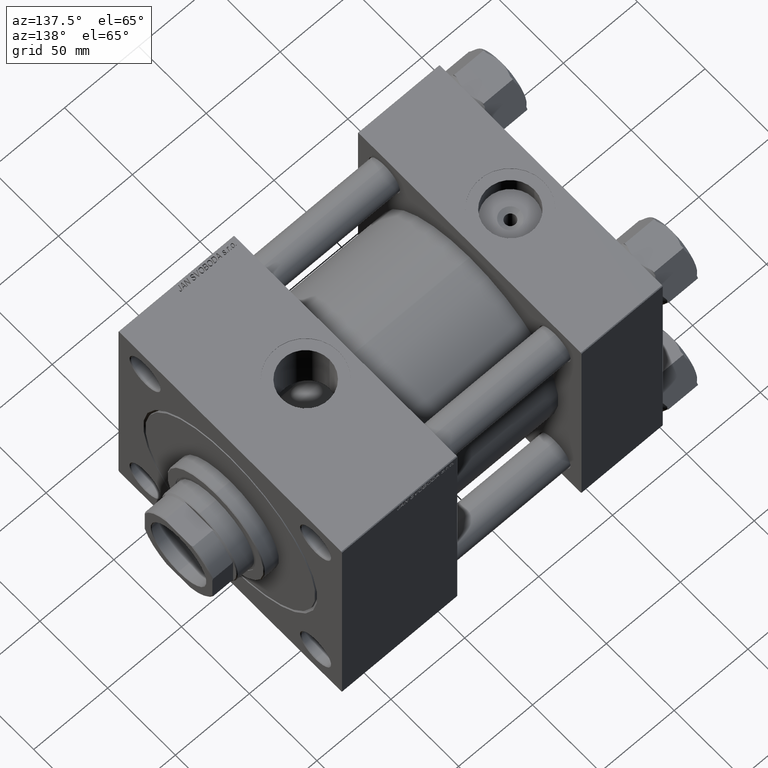
[diagram: clean part render]
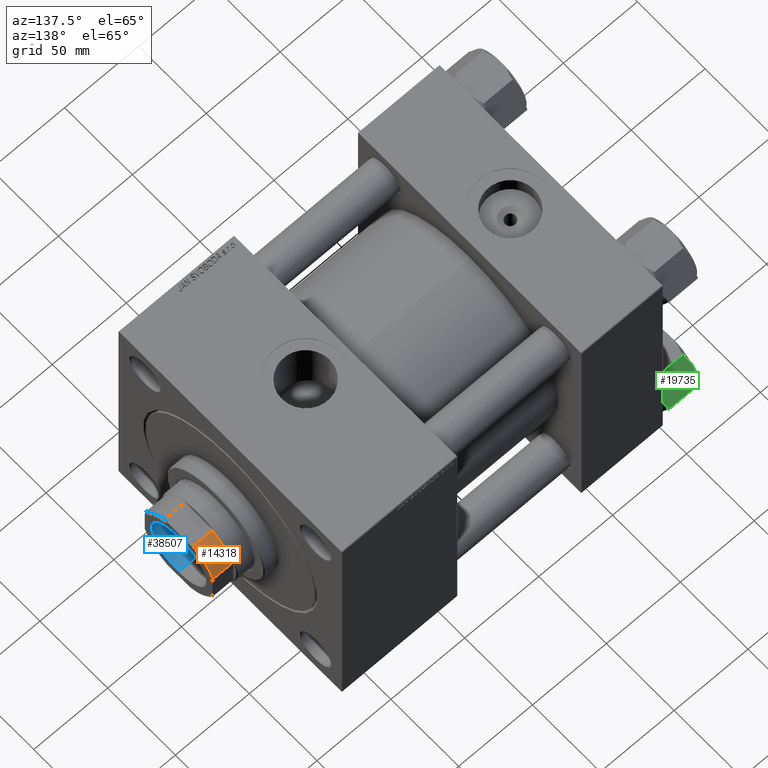
[diagram: same view with three faces highlighted in distinct colors, each labeled with its STEP entity id]
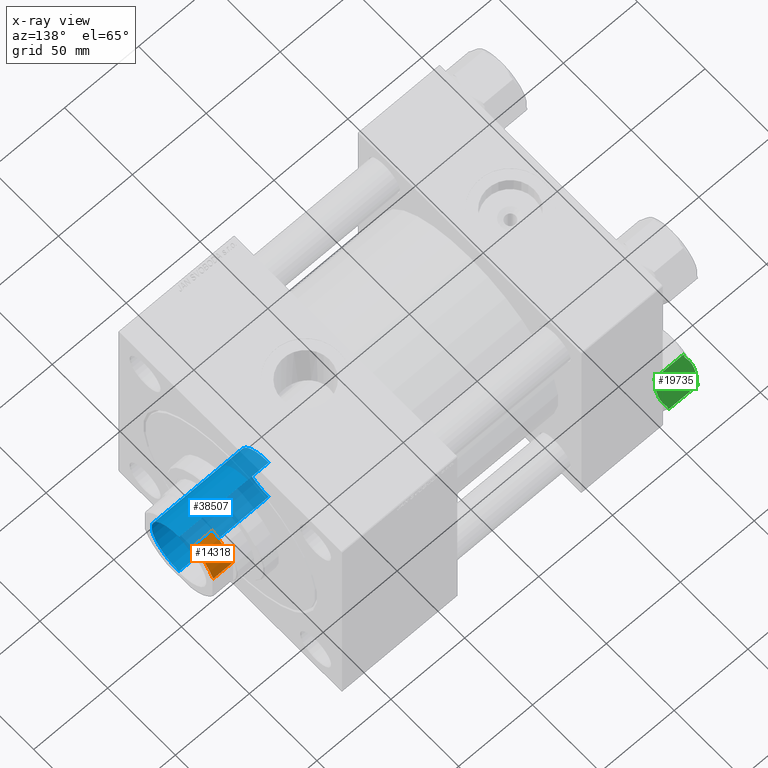
[diagram: x-ray of the same camera — body ghosted, the three highlighted faces saturated]
A machine part, auxiliary view with three faces highlighted in distinct colors.
The next image is the same camera in x-ray (body ghosted, the three faces saturated) — at least one of them is partly hidden behind the body in this view.
Their STEP definitions:

[orange] entity #14318 — the highlighted cylindrical surface (partial cylindrical patch) has radius 27 mm, axis along (1, 0, -0).
#904 = EDGE_LOOP ( 'NONE', ( #7978, #37603, #30715, #19022 ) ) ;
#2422 = VECTOR ( 'NONE', #36623, 1000.000000000000000 ) ;
#4158 = CARTESIAN_POINT ( 'NONE',  ( 24.99999999999999645, -10.19803902718558675, 183.4999999999999432 ) ) ;
#5453 = VERTEX_POINT ( 'NONE', #37686 ) ;
#7463 = EDGE_CURVE ( 'NONE', #16894, #12672, #12771, .T. ) ;
#7978 = ORIENTED_EDGE ( 'NONE', *, *, #20762, .T. ) ;
#10698 = DIRECTION ( 'NONE',  ( 1.000000000000000000, 0.000000000000000000, 0.000000000000000000 ) ) ;
#12672 = VERTEX_POINT ( 'NONE', #18009 ) ;
#12771 = CIRCLE ( 'NONE', #41458, 27.00000000000000355 ) ;
#13146 = CIRCLE ( 'NONE', #23853, 27.00000000000000355 ) ;
#14318 = ADVANCED_FACE ( 'NONE', ( #41746 ), #45864, .T. ) ;
#14682 = DIRECTION ( 'NONE',  ( -0.000000000000000000, -0.000000000000000000, 1.000000000000000000 ) ) ;
#16894 = VERTEX_POINT ( 'NONE', #30348 ) ;
#18009 = CARTESIAN_POINT ( 'NONE',  ( 10.19803902718556188, -25.00000000000000355, 196.5000000000000568 ) ) ;
#19022 = ORIENTED_EDGE ( 'NONE', *, *, #41978, .T. ) ;
#19491 = CARTESIAN_POINT ( 'NONE',  ( 24.99999999999999645, -10.19803902718558675, -0.001000000000001000089 ) ) ;
#20762 = EDGE_CURVE ( 'NONE', #49645, #16894, #47202, .T. ) ;
#21792 = CARTESIAN_POINT ( 'NONE',  ( 0.000000000000000000, 0.000000000000000000, 196.5000000000000568 ) ) ;
#22134 = CARTESIAN_POINT ( 'NONE',  ( 0.000000000000000000, 0.000000000000000000, 183.4999999999999432 ) ) ;
#23853 = AXIS2_PLACEMENT_3D ( 'NONE', #22134, #14682, #37813 ) ;
#27549 = CARTESIAN_POINT ( 'NONE',  ( 0.000000000000000000, 0.000000000000000000, -0.001000000000001000089 ) ) ;
#30348 = CARTESIAN_POINT ( 'NONE',  ( 24.99999999999999645, -10.19803902718558675, 196.5000000000000568 ) ) ;
#30715 = ORIENTED_EDGE ( 'NONE', *, *, #35496, .F. ) ;
#31144 = DIRECTION ( 'NONE',  ( -0.000000000000000000, -0.000000000000000000, 1.000000000000000000 ) ) ;
#31438 = CARTESIAN_POINT ( 'NONE',  ( 10.19803902718556188, -25.00000000000000355, -0.001000000000001000089 ) ) ;
#31945 = DIRECTION ( 'NONE',  ( -0.000000000000000000, -0.000000000000000000, 1.000000000000000000 ) ) ;
#35496 = EDGE_CURVE ( 'NONE', #5453, #12672, #39651, .T. ) ;
#36623 = DIRECTION ( 'NONE',  ( -0.000000000000000000, -0.000000000000000000, 1.000000000000000000 ) ) ;
#37603 = ORIENTED_EDGE ( 'NONE', *, *, #7463, .T. ) ;
#37686 = CARTESIAN_POINT ( 'NONE',  ( 10.19803902718556188, -25.00000000000000355, 183.4999999999999432 ) ) ;
#37813 = DIRECTION ( 'NONE',  ( -1.000000000000000000, 0.000000000000000000, 0.000000000000000000 ) ) ;
#39113 = AXIS2_PLACEMENT_3D ( 'NONE', #27549, #31144, #10698 ) ;
#39651 = LINE ( 'NONE', #31438, #45875 ) ;
#41458 = AXIS2_PLACEMENT_3D ( 'NONE', #21792, #49486, #45407 ) ;
#41746 = FACE_OUTER_BOUND ( 'NONE', #904, .T. ) ;
#41978 = EDGE_CURVE ( 'NONE', #5453, #49645, #13146, .T. ) ;
#45407 = DIRECTION ( 'NONE',  ( 1.000000000000000000, 0.000000000000000000, 0.000000000000000000 ) ) ;
#45864 = CYLINDRICAL_SURFACE ( 'NONE', #39113, 27.00000000000000355 ) ;
#45875 = VECTOR ( 'NONE', #31945, 1000.000000000000000 ) ;
#47202 = LINE ( 'NONE', #19491, #2422 ) ;
#49486 = DIRECTION ( 'NONE',  ( -0.000000000000000000, -0.000000000000000000, -1.000000000000000000 ) ) ;
#49645 = VERTEX_POINT ( 'NONE', #4158 ) ;

[blue] entity #38507 — the highlighted cylindrical surface (partial cylindrical patch) has radius 20.25 mm, axis along (1, 0, -0).
#1 = ORIENTED_EDGE ( 'NONE', *, *, #14496, .T. ) ;
#113 = EDGE_CURVE ( 'NONE', #23520, #20941, #537, .T. ) ;
#232 = EDGE_LOOP ( 'NONE', ( #43919, #3446, #1, #11897 ) ) ;
#537 = CIRCLE ( 'NONE', #5456, 20.24999999999999289 ) ;
#1915 = CARTESIAN_POINT ( 'NONE',  ( -20.24999999999998934, 2.479909768273389117E-15, 136.0000000000000000 ) ) ;
#3446 = ORIENTED_EDGE ( 'NONE', *, *, #40071, .F. ) ;
#4065 = DIRECTION ( 'NONE',  ( 1.000000000000000000, 0.000000000000000000, 0.000000000000000000 ) ) ;
#5456 = AXIS2_PLACEMENT_3D ( 'NONE', #40649, #40396, #20890 ) ;
#5888 = CARTESIAN_POINT ( 'NONE',  ( 0.000000000000000000, 0.000000000000000000, 136.0000000000000000 ) ) ;
#6139 = DIRECTION ( 'NONE',  ( 1.000000000000000000, 0.000000000000000000, 0.000000000000000000 ) ) ;
#6864 = CARTESIAN_POINT ( 'NONE',  ( 20.24999999999999289, 0.000000000000000000, 196.7000000000001023 ) ) ;
#7664 = CARTESIAN_POINT ( 'NONE',  ( 0.000000000000000000, 0.000000000000000000, 197.0000000000000000 ) ) ;
#11897 = ORIENTED_EDGE ( 'NONE', *, *, #113, .T. ) ;
#12482 = VECTOR ( 'NONE', #28641, 1000.000000000000000 ) ;
#14496 = EDGE_CURVE ( 'NONE', #41160, #23520, #18125, .T. ) ;
#16333 = CARTESIAN_POINT ( 'NONE',  ( -20.24999999999999289, 2.479909768273389511E-15, 197.0000000000000000 ) ) ;
#16450 = VERTEX_POINT ( 'NONE', #1915 ) ;
#18125 = LINE ( 'NONE', #42481, #19419 ) ;
#19419 = VECTOR ( 'NONE', #22984, 1000.000000000000000 ) ;
#19671 = AXIS2_PLACEMENT_3D ( 'NONE', #5888, #48754, #6139 ) ;
#19707 = AXIS2_PLACEMENT_3D ( 'NONE', #7664, #26915, #4065 ) ;
#20890 = DIRECTION ( 'NONE',  ( 1.000000000000000000, 0.000000000000000000, 0.000000000000000000 ) ) ;
#20941 = VERTEX_POINT ( 'NONE', #41713 ) ;
#22984 = DIRECTION ( 'NONE',  ( -0.000000000000000000, -0.000000000000000000, 1.000000000000000000 ) ) ;
#23520 = VERTEX_POINT ( 'NONE', #6864 ) ;
#26649 = EDGE_CURVE ( 'NONE', #16450, #20941, #33006, .T. ) ;
#26915 = DIRECTION ( 'NONE',  ( -0.000000000000000000, -0.000000000000000000, 1.000000000000000000 ) ) ;
#27954 = FACE_OUTER_BOUND ( 'NONE', #232, .T. ) ;
#28641 = DIRECTION ( 'NONE',  ( -0.000000000000000000, -0.000000000000000000, 1.000000000000000000 ) ) ;
#33006 = LINE ( 'NONE', #16333, #12482 ) ;
#38507 = ADVANCED_FACE ( 'NONE', ( #27954 ), #43353, .F. ) ;
#40071 = EDGE_CURVE ( 'NONE', #41160, #16450, #47509, .T. ) ;
#40396 = DIRECTION ( 'NONE',  ( 0.000000000000000000, 0.000000000000000000, 1.000000000000000000 ) ) ;
#40649 = CARTESIAN_POINT ( 'NONE',  ( 0.000000000000000000, 0.000000000000000000, 196.7000000000001023 ) ) ;
#41160 = VERTEX_POINT ( 'NONE', #47428 ) ;
#41713 = CARTESIAN_POINT ( 'NONE',  ( -20.24999999999999289, 2.479909768273389511E-15, 196.7000000000001023 ) ) ;
#42481 = CARTESIAN_POINT ( 'NONE',  ( 20.24999999999999289, 0.000000000000000000, 197.0000000000000000 ) ) ;
#43353 = CYLINDRICAL_SURFACE ( 'NONE', #19707, 20.24999999999999289 ) ;
#43919 = ORIENTED_EDGE ( 'NONE', *, *, #26649, .F. ) ;
#47428 = CARTESIAN_POINT ( 'NONE',  ( 20.24999999999998934, 0.000000000000000000, 136.0000000000000000 ) ) ;
#47509 = CIRCLE ( 'NONE', #19671, 20.24999999999998934 ) ;
#48754 = DIRECTION ( 'NONE',  ( -0.000000000000000000, -0.000000000000000000, 1.000000000000000000 ) ) ;

[green] entity #19735 — the highlighted planar face has unit normal (-0, -0.866, -0.5).
#2327 = CARTESIAN_POINT ( 'NONE',  ( 10.81000000000000405, 18.72346922981957107, -2.000000000000001776 ) ) ;
#2765 = CARTESIAN_POINT ( 'NONE',  ( 20.65611126068911574, 1.669504269329972868, -22.00000000000000000 ) ) ;
#3026 = CARTESIAN_POINT ( 'NONE',  ( 10.81000000000000405, 18.72346922981957107, -24.00000000000000000 ) ) ;
#3065 = EDGE_CURVE ( 'NONE', #20013, #50739, #13967, .T. ) ;
#3385 = LINE ( 'NONE', #14946, #18806 ) ;
#6328 = EDGE_CURVE ( 'NONE', #38561, #32555, #42109, .T. ) ;
#6504 = AXIS2_PLACEMENT_3D ( 'NONE', #32491, #29398, #25288 ) ;
#6721 = CARTESIAN_POINT ( 'NONE',  ( 16.98598932500589243, 8.026341931906362248, -0.05945867712355891455 ) ) ;
#6973 = VERTEX_POINT ( 'NONE', #18375 ) ;
#9144 = B_SPLINE_CURVE_WITH_KNOTS ( 'NONE', 3,
 ( #21078, #36746, #25432, #29293, #36500, #16985, #21335, #49028 ),
 .UNSPECIFIED., .F., .F.,
 ( 4, 2, 2, 4 ),
 ( 0.009109849294687017568, 0.01366157320126708957, 0.01593743515455712384, 0.01821329710784716158 ),
 .UNSPECIFIED. ) ;
#9383 = PLANE ( 'NONE',  #6504 ) ;
#9888 = B_SPLINE_CURVE_WITH_KNOTS ( 'NONE', 3,
 ( #34741, #27272, #15993, #27530, #27794, #38590, #19313, #31390 ),
 .UNSPECIFIED., .F., .F.,
 ( 4, 2, 2, 4 ),
 ( 0.009109849294687050528, 0.01366157320126712774, 0.01593743515455716547, 0.01821329710784720668 ),
 .UNSPECIFIED. ) ;
#10001 = CARTESIAN_POINT ( 'NONE',  ( 15.25296234352182800, 11.02803271472448365, -23.90516550165010656 ) ) ;
#10250 = CARTESIAN_POINT ( 'NONE',  ( 11.77388873931089641, 17.05396496048959065, -22.00000000000000000 ) ) ;
#10603 = CARTESIAN_POINT ( 'NONE',  ( 21.62000000000000810, -3.103245954629008997E-15, -24.00000000000000000 ) ) ;
#10779 = EDGE_CURVE ( 'NONE', #21820, #14639, #14023, .T. ) ;
#10824 = CARTESIAN_POINT ( 'NONE',  ( 16.60104632518792656, 8.693082765609046803, -0.01197337667081646920 ) ) ;
#11597 = EDGE_CURVE ( 'NONE', #23070, #32555, #22555, .T. ) ;
#13031 = ORIENTED_EDGE ( 'NONE', *, *, #20409, .F. ) ;
#13454 = CARTESIAN_POINT ( 'NONE',  ( 16.21500000000001052, 9.361734614909783758, 0.000000000000000000 ) ) ;
#13475 = ORIENTED_EDGE ( 'NONE', *, *, #48458, .F. ) ;
#13967 = B_SPLINE_CURVE_WITH_KNOTS ( 'NONE', 3,
 ( #18276, #45988, #38788, #33947, #45735, #46236, #6721, #10824, #26473, #14922 ),
 .UNSPECIFIED., .F., .F.,
 ( 4, 2, 2, 2, 4 ),
 ( 5.007809737542536672E-07, 0.004555175037830400987, 0.006832512166258725324, 0.007971180730472888359, 0.009109849294687050528 ),
 .UNSPECIFIED. ) ;
#14023 = LINE ( 'NONE', #29186, #33383 ) ;
#14372 = ORIENTED_EDGE ( 'NONE', *, *, #39543, .F. ) ;
#14520 = CARTESIAN_POINT ( 'NONE',  ( 11.77388873931089641, 17.05396496048959065, -22.00000000000000000 ) ) ;
#14552 = VERTEX_POINT ( 'NONE', #14520 ) ;
#14639 = VERTEX_POINT ( 'NONE', #19373 ) ;
#14922 = CARTESIAN_POINT ( 'NONE',  ( 16.21500000000001052, 9.361734614909783758, 0.000000000000000000 ) ) ;
#14946 = CARTESIAN_POINT ( 'NONE',  ( 10.81000000000000405, 18.72346922981957107, -2.000000000000001776 ) ) ;
#15147 = CARTESIAN_POINT ( 'NONE',  ( 20.65611126068912640, 1.669504269329956436, -2.000000000000000000 ) ) ;
#15199 = LINE ( 'NONE', #10603, #33058 ) ;
#15993 = CARTESIAN_POINT ( 'NONE',  ( 14.69400019531146562, 11.99618355493267785, -0.1908188403547866896 ) ) ;
#16985 = CARTESIAN_POINT ( 'NONE',  ( 19.94246781890515408, 2.905570968988123948, -22.58212083167677520 ) ) ;
#17467 = CARTESIAN_POINT ( 'NONE',  ( 16.21500000000000341, 9.361734614909781982, -24.00000000000000000 ) ) ;
#18212 = CARTESIAN_POINT ( 'NONE',  ( 13.20154625327794129, 14.58118961049118667, -23.10638014572220911 ) ) ;
#18276 = CARTESIAN_POINT ( 'NONE',  ( 20.65611126068912640, 1.669504269329956436, -2.000000000000000000 ) ) ;
#18375 = CARTESIAN_POINT ( 'NONE',  ( 21.62000000000000810, -3.103245954629008997E-15, -2.000000000000001776 ) ) ;
#18806 = VECTOR ( 'NONE', #41908, 1000.000000000000114 ) ;
#19313 = CARTESIAN_POINT ( 'NONE',  ( 12.12795923008833121, 16.44069688100222848, -1.696485868030860544 ) ) ;
#19373 = CARTESIAN_POINT ( 'NONE',  ( 21.62000000000000810, -3.103245954629008997E-15, -22.00000000000000000 ) ) ;
#19735 = ADVANCED_FACE ( 'NONE', ( #24788 ), #9383, .F. ) ;
#20013 = VERTEX_POINT ( 'NONE', #15147 ) ;
#20378 = VECTOR ( 'NONE', #45810, 1000.000000000000114 ) ;
#20403 = ORIENTED_EDGE ( 'NONE', *, *, #3065, .F. ) ;
#20409 = EDGE_CURVE ( 'NONE', #6973, #20013, #3385, .T. ) ;
#20491 = ORIENTED_EDGE ( 'NONE', *, *, #33294, .F. ) ;
#20493 = CARTESIAN_POINT ( 'NONE',  ( 11.77388873931088753, 17.05396496048960842, -2.000000000000000000 ) ) ;
#21078 = CARTESIAN_POINT ( 'NONE',  ( 16.21500000000000341, 9.361734614909781982, -24.00000000000000000 ) ) ;
#21335 = CARTESIAN_POINT ( 'NONE',  ( 20.30204076991167383, 2.282772348817355468, -22.30351413196913768 ) ) ;
#21628 = ORIENTED_EDGE ( 'NONE', *, *, #29811, .F. ) ;
#21820 = VERTEX_POINT ( 'NONE', #2765 ) ;
#22058 = CARTESIAN_POINT ( 'NONE',  ( 16.02284832181304708, 9.694551084289219745, -24.00000000000000000 ) ) ;
#22555 = LINE ( 'NONE', #3026, #29312 ) ;
#23070 = VERTEX_POINT ( 'NONE', #45514 ) ;
#23180 = EDGE_CURVE ( 'NONE', #26676, #21820, #9144, .T. ) ;
#24788 = FACE_OUTER_BOUND ( 'NONE', #45105, .T. ) ;
#25288 = DIRECTION ( 'NONE',  ( 0.4999999999999998335, -0.8660254037844387076, 0.000000000000000000 ) ) ;
#25432 = CARTESIAN_POINT ( 'NONE',  ( 17.73599980468854653, 6.727285674886890554, -23.80918115964520609 ) ) ;
#25696 = DIRECTION ( 'NONE',  ( -0.4999999999999998335, 0.8660254037844387076, 0.000000000000000000 ) ) ;
#26473 = CARTESIAN_POINT ( 'NONE',  ( 16.40715167818697040, 9.028918145530349548, 6.071955682392452769E-15 ) ) ;
#26509 = B_SPLINE_CURVE_WITH_KNOTS ( 'NONE', 3,
 ( #10250, #45177, #18212, #30016, #49742, #10001, #29268, #45665, #22058, #17467 ),
 .UNSPECIFIED., .F., .F.,
 ( 4, 2, 2, 2, 4 ),
 ( 5.007809737446996650E-07, 0.004555175037830383640, 0.006832512166258703640, 0.007971180730472862339, 0.009109849294687017568 ),
 .UNSPECIFIED. ) ;
#26676 = VERTEX_POINT ( 'NONE', #50624 ) ;
#26887 = DIRECTION ( 'NONE',  ( -0.000000000000000000, -0.000000000000000000, 1.000000000000000000 ) ) ;
#27272 = CARTESIAN_POINT ( 'NONE',  ( 15.44689116237993431, 10.69213814741042690, 6.071532165918818520E-15 ) ) ;
#27530 = CARTESIAN_POINT ( 'NONE',  ( 13.58342913161266452, 13.91974906267480172, -0.7123487060405472304 ) ) ;
#27794 = CARTESIAN_POINT ( 'NONE',  ( 13.21634051119549369, 14.55556520411771970, -0.9250850388960963899 ) ) ;
#29186 = CARTESIAN_POINT ( 'NONE',  ( 10.81000000000000405, 18.72346922981957107, -22.00000000000000000 ) ) ;
#29268 = CARTESIAN_POINT ( 'NONE',  ( 15.44401067499412861, 10.69712729791320172, -23.94054132287643100 ) ) ;
#29293 = CARTESIAN_POINT ( 'NONE',  ( 18.84657086838733875, 4.803720167144766684, -23.28765129395944555 ) ) ;
#29312 = VECTOR ( 'NONE', #26887, 1000.000000000000000 ) ;
#29398 = DIRECTION ( 'NONE',  ( -0.8660254037844387076, -0.4999999999999998335, 0.000000000000000000 ) ) ;
#29811 = EDGE_CURVE ( 'NONE', #14552, #26676, #26509, .T. ) ;
#29941 = DIRECTION ( 'NONE',  ( 0.4999999999999998335, -0.8660254037844387076, 0.000000000000000000 ) ) ;
#30016 = CARTESIAN_POINT ( 'NONE',  ( 14.30978229978947880, 12.66166847115394667, -23.62969313679642980 ) ) ;
#31390 = CARTESIAN_POINT ( 'NONE',  ( 11.77388873931088753, 17.05396496048960842, -2.000000000000000000 ) ) ;
#32491 = CARTESIAN_POINT ( 'NONE',  ( 10.81000000000000405, 18.72346922981957107, -24.00000000000000000 ) ) ;
#32555 = VERTEX_POINT ( 'NONE', #38826 ) ;
#33058 = VECTOR ( 'NONE', #41914, 1000.000000000000000 ) ;
#33294 = EDGE_CURVE ( 'NONE', #23070, #14552, #37876, .T. ) ;
#33383 = VECTOR ( 'NONE', #29941, 1000.000000000000114 ) ;
#33947 = CARTESIAN_POINT ( 'NONE',  ( 18.12021770021053868, 6.061800758665609301, -0.3703068632035601548 ) ) ;
#34741 = CARTESIAN_POINT ( 'NONE',  ( 16.21500000000001052, 9.361734614909783758, 0.000000000000000000 ) ) ;
#36500 = CARTESIAN_POINT ( 'NONE',  ( 19.21365948880451668, 4.167904025701855808, -23.07491496110389662 ) ) ;
#36746 = CARTESIAN_POINT ( 'NONE',  ( 16.98310883762007961, 8.031331082409145949, -23.99999999999999645 ) ) ;
#37876 = LINE ( 'NONE', #45555, #20378 ) ;
#38561 = VERTEX_POINT ( 'NONE', #20493 ) ;
#38590 = CARTESIAN_POINT ( 'NONE',  ( 12.48753218109485807, 15.81789826083145378, -1.417879168323224137 ) ) ;
#38788 = CARTESIAN_POINT ( 'NONE',  ( 19.22845374672207441, 4.142279619328364859, -0.8936198542777848974 ) ) ;
#38826 = CARTESIAN_POINT ( 'NONE',  ( 10.81000000000000405, 18.72346922981957107, -2.000000000000001776 ) ) ;
#39054 = ORIENTED_EDGE ( 'NONE', *, *, #23180, .F. ) ;
#39543 = EDGE_CURVE ( 'NONE', #50739, #38561, #9888, .T. ) ;
#41010 = ORIENTED_EDGE ( 'NONE', *, *, #6328, .F. ) ;
#41908 = DIRECTION ( 'NONE',  ( -0.4999999999999998335, 0.8660254037844387076, 0.000000000000000000 ) ) ;
#41914 = DIRECTION ( 'NONE',  ( -0.000000000000000000, -0.000000000000000000, 1.000000000000000000 ) ) ;
#42109 = LINE ( 'NONE', #2327, #42228 ) ;
#42228 = VECTOR ( 'NONE', #25696, 1000.000000000000114 ) ;
#45105 = EDGE_LOOP ( 'NONE', ( #20491, #49141, #41010, #14372, #20403, #13031, #13475, #50195, #39054, #21628 ) ) ;
#45177 = CARTESIAN_POINT ( 'NONE',  ( 12.48121638205396700, 15.82883754566066514, -22.60633105863622205 ) ) ;
#45514 = CARTESIAN_POINT ( 'NONE',  ( 10.81000000000000405, 18.72346922981957107, -22.00000000000000000 ) ) ;
#45555 = CARTESIAN_POINT ( 'NONE',  ( 10.81000000000000405, 18.72346922981957107, -22.00000000000000000 ) ) ;
#45665 = CARTESIAN_POINT ( 'NONE',  ( 15.82895367481208737, 10.03038646421052071, -23.98802662332917990 ) ) ;
#45735 = CARTESIAN_POINT ( 'NONE',  ( 17.74616263960890805, 6.709683128455893986, -0.2338220771833900424 ) ) ;
#45810 = DIRECTION ( 'NONE',  ( 0.4999999999999998335, -0.8660254037844387076, 0.000000000000000000 ) ) ;
#45988 = CARTESIAN_POINT ( 'NONE',  ( 19.94878361794605581, 2.894631684158886831, -1.393668941363773506 ) ) ;
#46236 = CARTESIAN_POINT ( 'NONE',  ( 17.17703765647819125, 7.695436515095084751, -0.09483449834988647020 ) ) ;
#48458 = EDGE_CURVE ( 'NONE', #14639, #6973, #15199, .T. ) ;
#49028 = CARTESIAN_POINT ( 'NONE',  ( 20.65611126068911574, 1.669504269329972868, -22.00000000000000000 ) ) ;
#49141 = ORIENTED_EDGE ( 'NONE', *, *, #11597, .T. ) ;
#49742 = CARTESIAN_POINT ( 'NONE',  ( 14.68383736039111120, 12.01378610136367087, -23.76617792281659547 ) ) ;
#50195 = ORIENTED_EDGE ( 'NONE', *, *, #10779, .F. ) ;
#50624 = CARTESIAN_POINT ( 'NONE',  ( 16.21500000000000341, 9.361734614909781982, -24.00000000000000000 ) ) ;
#50739 = VERTEX_POINT ( 'NONE', #13454 ) ;